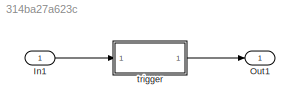
MODEL slx_314ba27a623c
KIND model
CONFIG AbsTol = auto
CONFIG EnableMultiTasking = off
CONFIG FixedStep = auto
CONFIG MaxStep = auto
CONFIG MinStep = auto
CONFIG RelTol = 1e-3
CONFIG SampleTimeConstraint = Unconstrained
CONFIG Solver = FixedStepDiscrete
CONFIG SolverName = FixedStepDiscrete
CONFIG StartTime = 0.0
CONFIG StopTime = 10.0
BLOCK [Inport] In1
  IconDisplay = Port number
BLOCK [Outport] Out1
  IconDisplay = Port number
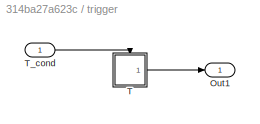
BLOCK [SubSystem] trigger
  AncestorBlock = Block_TestLib/trigger
  Ports = [1, 1]
  RequestExecContextInheritance = off
  Variant = off
BLOCK [Outport] trigger/Out1
  IconDisplay = Port number
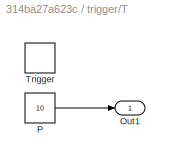
BLOCK [SubSystem] trigger/T
  Ports = [0, 1, 0, 1]
  RequestExecContextInheritance = off
  TreatAsAtomicUnit = on
  Variant = off
BLOCK [Outport] trigger/T/Out1
  IconDisplay = Port number
  InitialOutput = 3
BLOCK [Constant] trigger/T/P
  OutDataTypeStr = int8
  Value = 10
BLOCK [TriggerPort] trigger/T/Trigger
  Ports = []
  StatesWhenEnabling = held
  VariantControl = Variant
BLOCK [Inport] trigger/T_cond
  IconDisplay = Port number
  OutDataTypeStr = boolean
LINE In1:1 -> trigger:1
LINE trigger:1 -> Out1:1
